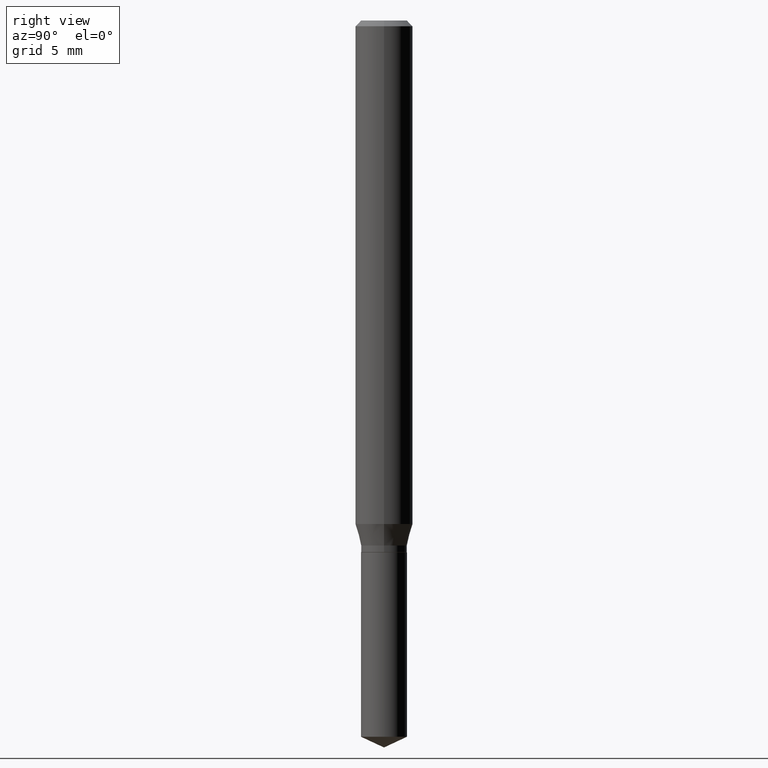
[diagram: clean part render]
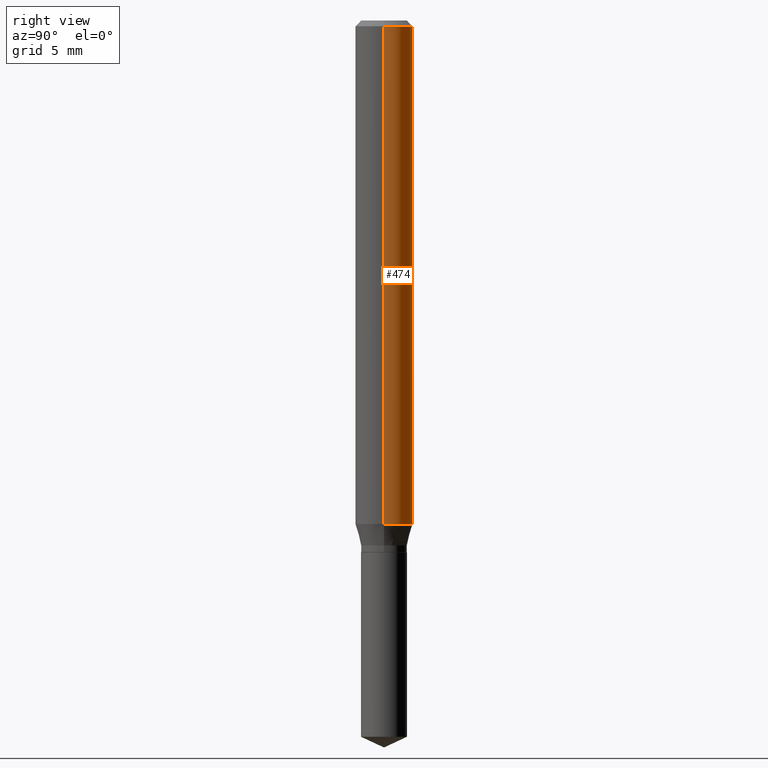
[diagram: same view with one face highlighted and labeled with its STEP entity id]
A machine part, right view. The second image highlights one B-rep face of the part: STEP entity #474.
In plain terms, the highlighted cylindrical surface (edge-blend (fillet) strip) has radius 1.4999 mm, axis along (-0, 0, 1).
Its self-contained STEP definition (entity closure, byte-faithful):
#6 = CIRCLE ( 'NONE', #380, 0.05904999999999999832 ) ;
#8 = ORIENTED_EDGE ( 'NONE', *, *, #350, .T. ) ;
#22 = CYLINDRICAL_SURFACE ( 'NONE', #301, 0.05905000000000006771 ) ;
#34 = ORIENTED_EDGE ( 'NONE', *, *, #103, .T. ) ;
#68 = FACE_OUTER_BOUND ( 'NONE', #269, .T. ) ;
#77 = EDGE_CURVE ( 'NONE', #176, #354, #6, .T. ) ;
#80 = ORIENTED_EDGE ( 'NONE', *, *, #101, .F. ) ;
#91 = VERTEX_POINT ( 'NONE', #217 ) ;
#97 = VERTEX_POINT ( 'NONE', #178 ) ;
#101 = EDGE_CURVE ( 'NONE', #91, #176, #180, .T. ) ;
#103 = EDGE_CURVE ( 'NONE', #97, #354, #452, .T. ) ;
#108 = CARTESIAN_POINT ( 'NONE',  ( -0.05905000000000006771, 4.195754854663396409E-16, -2.904631170795525045E-30 ) ) ;
#123 = DIRECTION ( 'NONE',  ( -2.445468806185136597E-29, 3.491481338843145583E-15, 1.000000000000000000 ) ) ;
#133 = CARTESIAN_POINT ( 'NONE',  ( 0.000000000000000000, 0.000000000000000000, 0.000000000000000000 ) ) ;
#142 = DIRECTION ( 'NONE',  ( 1.000000000000000000, -6.982962677686266711E-15, 4.876176775795936353E-29 ) ) ;
#176 = VERTEX_POINT ( 'NONE', #355 ) ;
#178 = CARTESIAN_POINT ( 'NONE',  ( -0.05905000000000013016, -3.198513253033061898E-15, -1.036261800470686723 ) ) ;
#180 = LINE ( 'NONE', #444, #338 ) ;
#203 = DIRECTION ( 'NONE',  ( 1.000000000000000000, -6.982962677686265133E-15, 0.000000000000000000 ) ) ;
#217 = CARTESIAN_POINT ( 'NONE',  ( 0.05905000000000013016, -4.030432684616777494E-15, -1.036261800470686723 ) ) ;
#260 = VECTOR ( 'NONE', #342, 39.37007874015748143 ) ;
#269 = EDGE_LOOP ( 'NONE', ( #8, #34, #332, #80 ) ) ;
#288 = DIRECTION ( 'NONE',  ( -2.445468806185136597E-29, 3.491481338843145583E-15, 1.000000000000000000 ) ) ;
#300 = DIRECTION ( 'NONE',  ( 1.000000000000000000, -6.982962677686266711E-15, 0.000000000000000000 ) ) ;
#301 = AXIS2_PLACEMENT_3D ( 'NONE', #133, #288, #142 ) ;
#304 = DIRECTION ( 'NONE',  ( -2.445468806185136877E-29, 3.491481338843145188E-15, 1.000000000000000000 ) ) ;
#332 = ORIENTED_EDGE ( 'NONE', *, *, #77, .F. ) ;
#338 = VECTOR ( 'NONE', #304, 39.37007874015748143 ) ;
#342 = DIRECTION ( 'NONE',  ( -2.445468806185136877E-29, 3.491481338843145188E-15, 1.000000000000000000 ) ) ;
#350 = EDGE_CURVE ( 'NONE', #91, #97, #455, .T. ) ;
#354 = VERTEX_POINT ( 'NONE', #442 ) ;
#355 = CARTESIAN_POINT ( 'NONE',  ( 0.05904999999999999832, -4.535783407291118600E-16, -0.01181000000000007565 ) ) ;
#380 = AXIS2_PLACEMENT_3D ( 'NONE', #421, #414, #300 ) ;
#414 = DIRECTION ( 'NONE',  ( -2.445468806185136597E-29, 3.491481338843145583E-15, 1.000000000000000000 ) ) ;
#421 = CARTESIAN_POINT ( 'NONE',  ( 2.888098660104664642E-31, -4.123439461173780879E-17, -0.01181000000000007565 ) ) ;
#442 = CARTESIAN_POINT ( 'NONE',  ( -0.05904999999999999832, -1.410086081089229475E-15, -0.01181000000000007565 ) ) ;
#444 = CARTESIAN_POINT ( 'NONE',  ( 0.05905000000000006771, -4.123439461173745257E-16, 2.879382386107503723E-30 ) ) ;
#446 = AXIS2_PLACEMENT_3D ( 'NONE', #472, #123, #203 ) ;
#452 = LINE ( 'NONE', #108, #260 ) ;
#455 = CIRCLE ( 'NONE', #446, 0.05905000000000013016 ) ;
#472 = CARTESIAN_POINT ( 'NONE',  ( 2.534145908092310761E-29, -3.618088738499401785E-15, -1.036261800470686723 ) ) ;
#474 = ADVANCED_FACE ( 'NONE', ( #68 ), #22, .T. ) ;